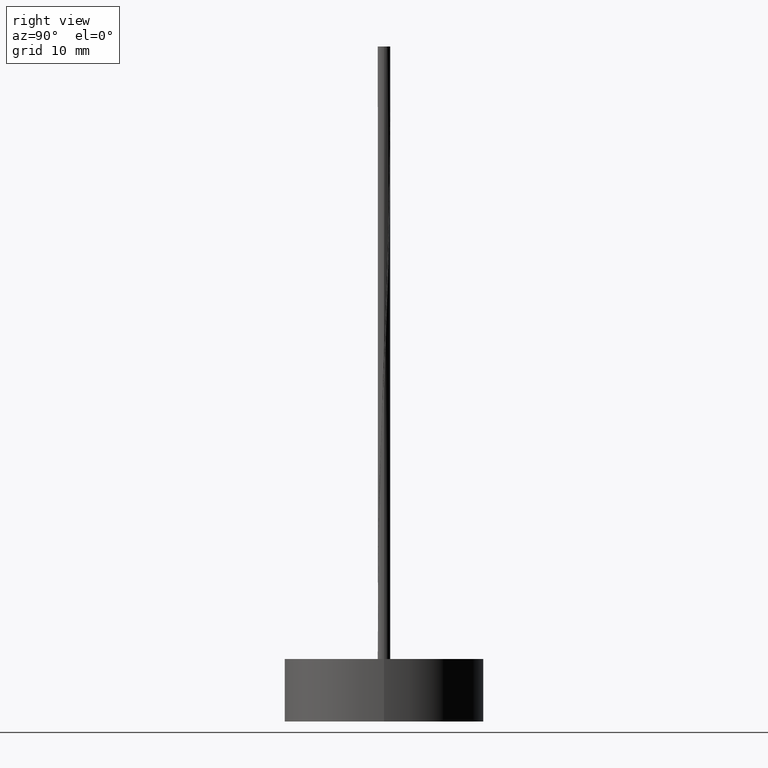
[diagram: clean part render]
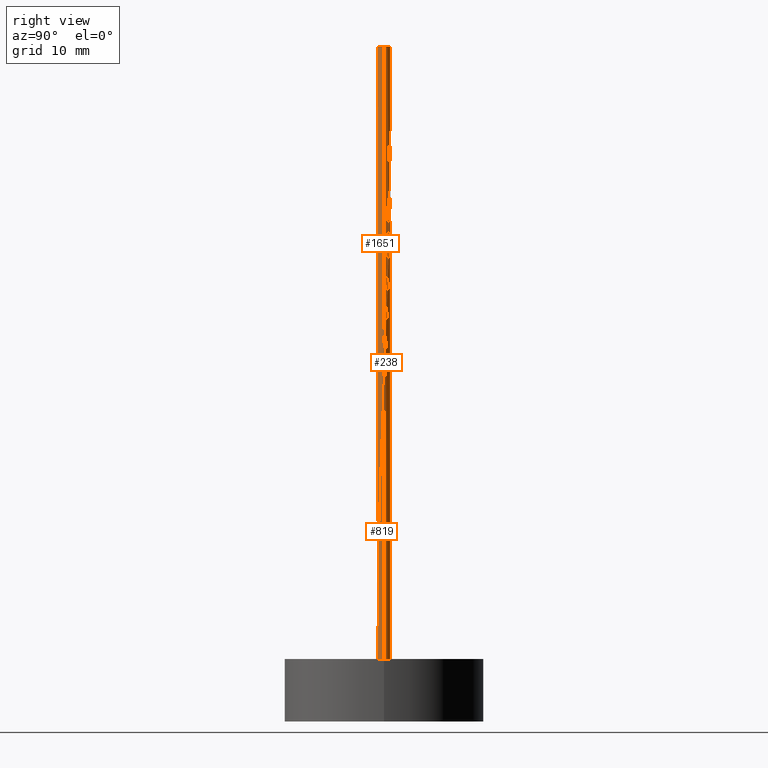
[diagram: same view with one multi-face feature highlighted, each face labeled with its STEP entity id]
A machine part, right view. The highlighted faces form ONE feature: a constant-radius fillet chain: 3 tangent blend faces with common blend radius 1 mm. The faces share edges in the B-rep.
Their STEP definitions:
[1] entity #238 (Cylinder):
#12 = LINE ( 'NONE', #1387, #555 ) ;
#25 = EDGE_CURVE ( 'NONE', #1259, #300, #1233, .T. ) ;
#60 = CARTESIAN_POINT ( 'NONE',  ( 0.8240076493817509729, 0.5720186643960755157, 74.88333333333331154 ) ) ;
#62 = CARTESIAN_POINT ( 'NONE',  ( 0.6069143560235192858, 0.7986544453702525415, 83.21666666666661172 ) ) ;
#68 = CARTESIAN_POINT ( 'NONE',  ( 1.000000000000000000, 1.224646799147353207E-16, 10.00000000000000000 ) ) ;
#71 = CARTESIAN_POINT ( 'NONE',  ( 0.000000000000000000, 0.000000000000000000, 97.80000000000001137 ) ) ;
#77 = CARTESIAN_POINT ( 'NONE',  ( 0.5040458170013946138, 0.8636769154975698637, 81.13333333333333997 ) ) ;
#80 = CARTESIAN_POINT ( 'NONE',  ( 0.8837640064664494810, 0.4745051522707387504, 66.54999999999999716 ) ) ;
#87 = CARTESIAN_POINT ( 'NONE',  ( 0.05700699695784680610, 0.9983737788513116218, 93.63333333333331154 ) ) ;
#88 = EDGE_CURVE ( 'NONE', #1149, #829, #1917, .T. ) ;
#95 = DIRECTION ( 'NONE',  ( 0.000000000000000000, 0.000000000000000000, 1.000000000000000000 ) ) ;
#105 = DIRECTION ( 'NONE',  ( 0.000000000000000000, 0.000000000000000000, 1.000000000000000000 ) ) ;
#209 = CARTESIAN_POINT ( 'NONE',  ( 0.6329490128214870781, 0.7741934817397425617, 76.96666666666665435 ) ) ;
#212 = CARTESIAN_POINT ( 'NONE',  ( 0.9999999999999997780, 0.05006261743217636090, 54.80811277766247969 ) ) ;
#216 = AXIS2_PLACEMENT_3D ( 'NONE', #71, #224, #1449 ) ;
#220 = CARTESIAN_POINT ( 'NONE',  ( 1.000000000000000222, 1.068785515643666300E-17, 58.78756500856336942 ) ) ;
#222 = CARTESIAN_POINT ( 'NONE',  ( 0.5407097541471291846, 0.8412092259183512333, 85.29999999999999716 ) ) ;
#224 = DIRECTION ( 'NONE',  ( 0.000000000000000000, -0.000000000000000000, -1.000000000000000000 ) ) ;
#228 = CARTESIAN_POINT ( 'NONE',  ( 1.000000000000000000, 1.224646799147353207E-16, 108.0000000000000000 ) ) ;
#230 = CARTESIAN_POINT ( 'NONE',  ( 0.9671260189330124213, 0.2542975884722126767, 60.30000000000000426 ) ) ;
#235 = ORIENTED_EDGE ( 'NONE', *, *, #1410, .T. ) ;
#238 = ADVANCED_FACE ( 'NONE', ( #1014 ), #1891, .T. ) ;
#243 = DIRECTION ( 'NONE',  ( 1.000000000000000000, 0.000000000000000000, 0.000000000000000000 ) ) ;
#247 = VERTEX_POINT ( 'NONE', #564 ) ;
#265 = VECTOR ( 'NONE', #1446, 1000.000000000000000 ) ;
#266 = CARTESIAN_POINT ( 'NONE',  ( 1.000000000000000000, 1.211290251062825998E-16, 53.47910165810331051 ) ) ;
#274 = ORIENTED_EDGE ( 'NONE', *, *, #680, .F. ) ;
#300 = VERTEX_POINT ( 'NONE', #1160 ) ;
#346 = ORIENTED_EDGE ( 'NONE', *, *, #851, .F. ) ;
#364 = EDGE_CURVE ( 'NONE', #992, #1888, #1646, .T. ) ;
#375 = CARTESIAN_POINT ( 'NONE',  ( 0.2124852142324064053, 0.9771642818546981690, 89.46666666666665435 ) ) ;
#382 = CIRCLE ( 'NONE', #216, 1.000000000000000000 ) ;
#405 = CARTESIAN_POINT ( 'NONE',  ( 0.8636769154975700857, 0.5040458170013947248, 72.79999999999998295 ) ) ;
#512 = CARTESIAN_POINT ( 'NONE',  ( 0.9154381855726569928, 0.4024586045737387763, 64.46666666666665435 ) ) ;
#531 = CARTESIAN_POINT ( 'NONE',  ( 0.09987492177719095587, 0.9949999999999999956, 97.79999999999999716 ) ) ;
#538 = CARTESIAN_POINT ( 'NONE',  ( 0.9983737788513118439, 0.05700699695784688936, 60.29999999999999005 ) ) ;
#546 = CARTESIAN_POINT ( 'NONE',  ( 0.9938872308897835905, 0.1355807174023893336, 62.38333333333332575 ) ) ;
#555 = VECTOR ( 'NONE', #795, 1000.000000000000000 ) ;
#564 = CARTESIAN_POINT ( 'NONE',  ( 1.000000000000000222, 1.068785515643666300E-17, 58.78756500856336942 ) ) ;
#639 = AXIS2_PLACEMENT_3D ( 'NONE', #1739, #105, #1066 ) ;
#675 = CARTESIAN_POINT ( 'NONE',  ( -0.09987492177719094200, 0.9949999999999999956, 97.79999999999999716 ) ) ;
#680 = EDGE_CURVE ( 'NONE', #829, #1277, #382, .T. ) ;
#706 = CARTESIAN_POINT ( 'NONE',  ( 0.6656468350606268292, 0.7462669033085755910, 81.13333333333332575 ) ) ;
#724 = AXIS2_PLACEMENT_3D ( 'NONE', #842, #865, #1582 ) ;
#795 = DIRECTION ( 'NONE',  ( -0.000000000000000000, -0.000000000000000000, -1.000000000000000000 ) ) ;
#815 = CARTESIAN_POINT ( 'NONE',  ( 0.8412092259183509002, 0.5407097541471290736, 68.63333333333331154 ) ) ;
#829 = VERTEX_POINT ( 'NONE', #675 ) ;
#833 = CARTESIAN_POINT ( 'NONE',  ( 0.09987492177719095587, 0.9949999999999999956, 97.79999999999999716 ) ) ;
#838 = ORIENTED_EDGE ( 'NONE', *, *, #364, .T. ) ;
#842 = CARTESIAN_POINT ( 'NONE',  ( 0.000000000000000000, 0.000000000000000000, 108.0000000000000000 ) ) ;
#845 = CARTESIAN_POINT ( 'NONE',  ( 1.000000000000000000, 1.211290251062825998E-16, 53.47910165810331051 ) ) ;
#851 = EDGE_CURVE ( 'NONE', #1277, #247, #922, .T. ) ;
#865 = DIRECTION ( 'NONE',  ( -0.000000000000000000, -0.000000000000000000, -1.000000000000000000 ) ) ;
#922 =( BOUNDED_CURVE ( )  B_SPLINE_CURVE ( 2, ( #531, #1703, #1857, #1419, #977, #1553, #222, #62, #706, #1130, #1855, #60, #405, #1701, #1562, #1719, #1007, #546, #538, #1015, #220 ),
 .UNSPECIFIED., .F., .T. ) 
 B_SPLINE_CURVE_WITH_KNOTS ( ( 3, 2, 2, 2, 2, 2, 2, 2, 2, 2, 3 ),
 ( 0.000000000000000000, 0.008333333333333333218, 0.01666666666666666644, 0.02500000000000000139, 0.03333333333333333287, 0.04166666666666666435, 0.05000000000000000278, 0.05833333333333333426, 0.06666666666666666574, 0.07499999999999999722, 0.07802649809302454609 ),
 .UNSPECIFIED. ) 
 CURVE ( )  GEOMETRIC_REPRESENTATION_ITEM ( )  RATIONAL_B_SPLINE_CURVE ( ( 0.9523809523809546596, 0.9494450797458384717, 0.9523809523809546596, 0.9494450797458384717, 0.9523809523809546596, 0.9494450797458384717, 0.9523809523809546596, 0.9494450797458384717, 0.9523809523809546596, 0.9494450797458384717, 0.9523809523809546596, 0.9494450797458384717, 0.9523809523809546596, 0.9494450797458384717, 0.9523809523809546596, 0.9494450797458384717, 0.9523809523809546596, 0.9494450797458384717, 0.9523809523809546596, 0.9513147028291696339, 0.9510229338138244115 ) ) 
 REPRESENTATION_ITEM ( '' )  );
#945 = EDGE_CURVE ( 'NONE', #1149, #992, #1591, .T. ) ;
#966 = CARTESIAN_POINT ( 'NONE',  ( 0.7462669033085754799, 0.6656468350606264961, 72.79999999999998295 ) ) ;
#968 = CARTESIAN_POINT ( 'NONE',  ( 0.9471123646788645045, 0.3304120568767389132, 62.38333333333333286 ) ) ;
#974 = CARTESIAN_POINT ( 'NONE',  ( 0.3627313403345689968, 0.9318937572165009176, 85.29999999999998295 ) ) ;
#975 = CARTESIAN_POINT ( 'NONE',  ( 1.000000000000000000, 1.224646799147353207E-16, 108.0000000000000000 ) ) ;
#977 = CARTESIAN_POINT ( 'NONE',  ( 0.4024586045737388873, 0.9154381855726573258, 89.46666666666665435 ) ) ;
#992 = VERTEX_POINT ( 'NONE', #68 ) ;
#998 = CARTESIAN_POINT ( 'NONE',  ( -0.09987492177719094200, 0.9949999999999999956, 97.79999999999999716 ) ) ;
#1007 = CARTESIAN_POINT ( 'NONE',  ( 0.9771642818546983911, 0.2124852142324065718, 64.46666666666665435 ) ) ;
#1014 = FACE_OUTER_BOUND ( 'NONE', #1527, .T. ) ;
#1015 = CARTESIAN_POINT ( 'NONE',  ( 1.000000000000000222, 0.02852669383533204192, 59.54486247433771240 ) ) ;
#1066 = DIRECTION ( 'NONE',  ( 1.000000000000000000, 0.000000000000000000, 0.000000000000000000 ) ) ;
#1130 = CARTESIAN_POINT ( 'NONE',  ( 0.7243793140977339284, 0.6938793612468989735, 79.04999999999999716 ) ) ;
#1149 = VERTEX_POINT ( 'NONE', #266 ) ;
#1150 = CARTESIAN_POINT ( 'NONE',  ( -0.02156672348669558606, 1.002860326812839986, 95.71666666666666856 ) ) ;
#1160 = CARTESIAN_POINT ( 'NONE',  ( -1.000000000000000000, 0.000000000000000000, 108.0000000000000000 ) ) ;
#1165 = ORIENTED_EDGE ( 'NONE', *, *, #88, .F. ) ;
#1221 = ORIENTED_EDGE ( 'NONE', *, *, #945, .T. ) ;
#1233 = CIRCLE ( 'NONE', #1299, 1.000000000000000000 ) ;
#1259 = VERTEX_POINT ( 'NONE', #228 ) ;
#1260 = CARTESIAN_POINT ( 'NONE',  ( 0.9949999999999997735, 0.09987492177719102526, 56.13333333333333286 ) ) ;
#1268 = CARTESIAN_POINT ( 'NONE',  ( 0.7986544453702520974, 0.6069143560235191748, 70.71666666666666856 ) ) ;
#1274 = DIRECTION ( 'NONE',  ( -0.000000000000000000, -0.000000000000000000, -1.000000000000000000 ) ) ;
#1277 = VERTEX_POINT ( 'NONE', #833 ) ;
#1284 = CARTESIAN_POINT ( 'NONE',  ( 0.1355807174023891115, 0.9938872308897833685, 91.55000000000001137 ) ) ;
#1299 = AXIS2_PLACEMENT_3D ( 'NONE', #1326, #95, #243 ) ;
#1326 = CARTESIAN_POINT ( 'NONE',  ( 0.000000000000000000, 0.000000000000000000, 108.0000000000000000 ) ) ;
#1387 = CARTESIAN_POINT ( 'NONE',  ( -1.000000000000000000, 0.000000000000000000, 108.0000000000000000 ) ) ;
#1405 = CARTESIAN_POINT ( 'NONE',  ( -1.000000000000000000, 0.000000000000000000, 10.00000000000000000 ) ) ;
#1410 = EDGE_CURVE ( 'NONE', #1259, #247, #1727, .T. ) ;
#1417 = CARTESIAN_POINT ( 'NONE',  ( 0.5720186643960754047, 0.8240076493817507508, 79.04999999999999716 ) ) ;
#1419 = CARTESIAN_POINT ( 'NONE',  ( 0.3304120568767389132, 0.9471123646788646155, 91.54999999999996874 ) ) ;
#1436 = ORIENTED_EDGE ( 'NONE', *, *, #25, .F. ) ;
#1446 = DIRECTION ( 'NONE',  ( -0.000000000000000000, -0.000000000000000000, -1.000000000000000000 ) ) ;
#1449 = DIRECTION ( 'NONE',  ( -1.000000000000000000, 0.000000000000000000, 0.000000000000000000 ) ) ;
#1525 = CARTESIAN_POINT ( 'NONE',  ( 0.4360729696067141559, 0.9033461816133890876, 83.21666666666666856 ) ) ;
#1527 = EDGE_LOOP ( 'NONE', ( #1436, #235, #346, #274, #1165, #1221, #838, #1546 ) ) ;
#1546 = ORIENTED_EDGE ( 'NONE', *, *, #1887, .F. ) ;
#1550 = CARTESIAN_POINT ( 'NONE',  ( 0.6938793612468987515, 0.7243793140977340395, 74.88333333333332575 ) ) ;
#1553 = CARTESIAN_POINT ( 'NONE',  ( 0.4745051522707389169, 0.8837640064664498141, 87.38333333333332575 ) ) ;
#1560 = VECTOR ( 'NONE', #1274, 1000.000000000000000 ) ;
#1562 = CARTESIAN_POINT ( 'NONE',  ( 0.9318937572165011396, 0.3627313403345691634, 68.63333333333331154 ) ) ;
#1582 = DIRECTION ( 'NONE',  ( -1.000000000000000000, 0.000000000000000000, 0.000000000000000000 ) ) ;
#1591 = LINE ( 'NONE', #975, #1560 ) ;
#1646 = CIRCLE ( 'NONE', #639, 1.000000000000000000 ) ;
#1701 = CARTESIAN_POINT ( 'NONE',  ( 0.9033461816133891986, 0.4360729696067143224, 70.71666666666666856 ) ) ;
#1703 = CARTESIAN_POINT ( 'NONE',  ( 0.1781831200676863014, 0.9871396731871600050, 95.71666666666665435 ) ) ;
#1704 = CARTESIAN_POINT ( 'NONE',  ( 0.9871396731871595609, 0.1781831200676863014, 58.21666666666666856 ) ) ;
#1719 = CARTESIAN_POINT ( 'NONE',  ( 0.9604413328196134136, 0.2893897110624240043, 66.54999999999996874 ) ) ;
#1727 = LINE ( 'NONE', #1873, #265 ) ;
#1739 = CARTESIAN_POINT ( 'NONE',  ( 0.000000000000000000, 0.000000000000000000, 10.00000000000000000 ) ) ;
#1854 = CARTESIAN_POINT ( 'NONE',  ( 0.2893897110624237823, 0.9604413328196130806, 87.38333333333329733 ) ) ;
#1855 = CARTESIAN_POINT ( 'NONE',  ( 0.7741934817397426727, 0.6329490128214871891, 76.96666666666665435 ) ) ;
#1857 = CARTESIAN_POINT ( 'NONE',  ( 0.2542975884722125657, 0.9671260189330125323, 93.63333333333331154 ) ) ;
#1873 = CARTESIAN_POINT ( 'NONE',  ( 1.000000000000000000, 1.224646799147353207E-16, 108.0000000000000000 ) ) ;
#1887 = EDGE_CURVE ( 'NONE', #300, #1888, #12, .T. ) ;
#1888 = VERTEX_POINT ( 'NONE', #1405 ) ;
#1891 = CYLINDRICAL_SURFACE ( 'NONE', #724, 1.000000000000000000 ) ;
#1917 =( BOUNDED_CURVE ( )  B_SPLINE_CURVE ( 2, ( #845, #212, #1260, #1704, #230, #968, #512, #80, #815, #1268, #966, #1550, #209, #1417, #77, #1525, #974, #1854, #375, #1284, #87, #1150, #998 ),
 .UNSPECIFIED., .F., .T. ) 
 B_SPLINE_CURVE_WITH_KNOTS ( ( 3, 2, 2, 2, 2, 2, 2, 2, 2, 2, 2, 3 ),
 ( 0.9113598314263579026, 0.9166666666666666297, 0.9250000000000000444, 0.9333333333333333481, 0.9416666666666666519, 0.9499999999999999556, 0.9583333333333333703, 0.9666666666666666741, 0.9749999999999999778, 0.9833333333333332815, 0.9916666666666666963, 1.000000000000000000 ),
 .UNSPECIFIED. ) 
 CURVE ( )  GEOMETRIC_REPRESENTATION_ITEM ( )  RATIONAL_B_SPLINE_CURVE ( ( 0.9510229338138209698, 0.9505113292976203887, 0.9523809523809514399, 0.9494450797458353630, 0.9523809523809514399, 0.9494450797458353630, 0.9523809523809514399, 0.9494450797458353630, 0.9523809523809514399, 0.9494450797458353630, 0.9523809523809514399, 0.9494450797458353630, 0.9523809523809514399, 0.9494450797458353630, 0.9523809523809514399, 0.9494450797458353630, 0.9523809523809514399, 0.9494450797458353630, 0.9523809523809514399, 0.9494450797458353630, 0.9523809523809514399, 0.9494450797458353630, 0.9523809523809514399 ) ) 
 REPRESENTATION_ITEM ( '' )  );
[2] entity #819 (Cylinder):
#68 = CARTESIAN_POINT ( 'NONE',  ( 1.000000000000000000, 1.224646799147353207E-16, 10.00000000000000000 ) ) ;
#72 = ORIENTED_EDGE ( 'NONE', *, *, #1677, .F. ) ;
#149 = CARTESIAN_POINT ( 'NONE',  ( 1.000000000000000000, 1.211290251062825998E-16, 53.47910165810331051 ) ) ;
#162 = DIRECTION ( 'NONE',  ( 1.000000000000000000, 0.000000000000000000, 0.000000000000000000 ) ) ;
#266 = CARTESIAN_POINT ( 'NONE',  ( 1.000000000000000000, 1.211290251062825998E-16, 53.47910165810331051 ) ) ;
#284 = CARTESIAN_POINT ( 'NONE',  ( 0.9771642818546983911, -0.2124852142324063498, 47.80000000000000426 ) ) ;
#294 = CARTESIAN_POINT ( 'NONE',  ( 0.7243793140977341505, -0.6938793612468987515, 33.21666666666666856 ) ) ;
#422 = EDGE_CURVE ( 'NONE', #1772, #992, #821, .T. ) ;
#451 = CARTESIAN_POINT ( 'NONE',  ( 0.000000000000000000, 0.000000000000000000, 108.0000000000000000 ) ) ;
#486 = CARTESIAN_POINT ( 'NONE',  ( -0.06831291332715047626, -0.9976639443583983358, 10.00000000000000888 ) ) ;
#574 = CARTESIAN_POINT ( 'NONE',  ( 0.4024586045737388318, -0.9154381855726569928, 22.79999999999999716 ) ) ;
#649 = AXIS2_PLACEMENT_3D ( 'NONE', #451, #753, #1123 ) ;
#716 = CARTESIAN_POINT ( 'NONE',  ( 0.6069143560235191748, -0.7986544453702520974, 29.04999999999999005 ) ) ;
#725 = CARTESIAN_POINT ( 'NONE',  ( 0.9033461816133890876, -0.4360729696067141559, 41.54999999999999716 ) ) ;
#736 = CARTESIAN_POINT ( 'NONE',  ( -0.06831291332715047626, -0.9976639443583983358, 10.00000000000000888 ) ) ;
#742 = ORIENTED_EDGE ( 'NONE', *, *, #422, .T. ) ;
#753 = DIRECTION ( 'NONE',  ( -0.000000000000000000, -0.000000000000000000, -1.000000000000000000 ) ) ;
#817 = CYLINDRICAL_SURFACE ( 'NONE', #649, 1.000000000000000000 ) ;
#819 = ADVANCED_FACE ( 'NONE', ( #1688 ), #817, .T. ) ;
#821 = CIRCLE ( 'NONE', #980, 1.000000000000000000 ) ;
#866 = CARTESIAN_POINT ( 'NONE',  ( 0.5407097541471290736, -0.8412092259183509002, 26.96666666666666146 ) ) ;
#897 = CARTESIAN_POINT ( 'NONE',  ( 0.9938872308897833685, -0.1355807174023891115, 49.88333333333332575 ) ) ;
#907 = CARTESIAN_POINT ( 'NONE',  ( 0.9983737788513116218, -0.05700699695784674365, 51.96666666666667567 ) ) ;
#923 = CARTESIAN_POINT ( 'NONE',  ( 0.000000000000000000, 0.000000000000000000, 10.00000000000000000 ) ) ;
#945 = EDGE_CURVE ( 'NONE', #1149, #992, #1591, .T. ) ;
#975 = CARTESIAN_POINT ( 'NONE',  ( 1.000000000000000000, 1.224646799147353207E-16, 108.0000000000000000 ) ) ;
#980 = AXIS2_PLACEMENT_3D ( 'NONE', #923, #1058, #162 ) ;
#992 = VERTEX_POINT ( 'NONE', #68 ) ;
#1022 = CARTESIAN_POINT ( 'NONE',  ( 0.8240076493817507508, -0.5720186643960750716, 37.38333333333333997 ) ) ;
#1042 = CARTESIAN_POINT ( 'NONE',  ( -0.05700699695784665344, -0.9983737788513116218, 10.30000000000000426 ) ) ;
#1055 = CARTESIAN_POINT ( 'NONE',  ( 0.02156672348669570055, -1.002860326812839986, 12.38333333333332931 ) ) ;
#1058 = DIRECTION ( 'NONE',  ( 0.000000000000000000, 0.000000000000000000, 1.000000000000000000 ) ) ;
#1063 = CARTESIAN_POINT ( 'NONE',  ( 0.1781831200676863569, -0.9871396731871595609, 16.54999999999999005 ) ) ;
#1123 = DIRECTION ( 'NONE',  ( -1.000000000000000000, 0.000000000000000000, 0.000000000000000000 ) ) ;
#1149 = VERTEX_POINT ( 'NONE', #266 ) ;
#1184 = CARTESIAN_POINT ( 'NONE',  ( 0.9604413328196130806, -0.2893897110624237823, 45.71666666666666856 ) ) ;
#1264 =( BOUNDED_CURVE ( )  B_SPLINE_CURVE ( 2, ( #736, #1462, #1042, #1055, #1617, #1063, #1628, #1636, #574, #1339, #866, #716, #1318, #294, #1899, #1022, #1910, #725, #1329, #1184, #284, #897, #907, #1492, #149 ),
 .UNSPECIFIED., .F., .T. ) 
 B_SPLINE_CURVE_WITH_KNOTS ( ( 3, 2, 2, 2, 2, 2, 2, 2, 2, 2, 2, 2, 3 ),
 ( 0.8243985274115703810, 0.8249999999999999556, 0.8333333333333333703, 0.8416666666666666741, 0.8499999999999999778, 0.8583333333333333925, 0.8666666666666666963, 0.8750000000000000000, 0.8833333333333333037, 0.8916666666666666075, 0.9000000000000000222, 0.9083333333333333259, 0.9113598314263579026 ),
 .UNSPECIFIED. ) 
 CURVE ( )  GEOMETRIC_REPRESENTATION_ITEM ( )  RATIONAL_B_SPLINE_CURVE ( ( 0.9519877378469893126, 0.9521690507513742574, 0.9523809523809514399, 0.9494450797458353630, 0.9523809523809514399, 0.9494450797458353630, 0.9523809523809514399, 0.9494450797458353630, 0.9523809523809514399, 0.9494450797458353630, 0.9523809523809514399, 0.9494450797458353630, 0.9523809523809514399, 0.9494450797458353630, 0.9523809523809514399, 0.9494450797458353630, 0.9523809523809514399, 0.9494450797458353630, 0.9523809523809514399, 0.9494450797458353630, 0.9523809523809514399, 0.9494450797458353630, 0.9523809523809514399, 0.9513147028291664142, 0.9510229338138209698 ) ) 
 REPRESENTATION_ITEM ( '' )  );
#1274 = DIRECTION ( 'NONE',  ( -0.000000000000000000, -0.000000000000000000, -1.000000000000000000 ) ) ;
#1318 = CARTESIAN_POINT ( 'NONE',  ( 0.6656468350606266071, -0.7462669033085753689, 31.13333333333333286 ) ) ;
#1329 = CARTESIAN_POINT ( 'NONE',  ( 0.9318937572165009176, -0.3627313403345689968, 43.63333333333333997 ) ) ;
#1339 = CARTESIAN_POINT ( 'NONE',  ( 0.4745051522707388614, -0.8837640064664494810, 24.88333333333331865 ) ) ;
#1443 = EDGE_LOOP ( 'NONE', ( #1877, #72, #742 ) ) ;
#1462 = CARTESIAN_POINT ( 'NONE',  ( -0.06266196545756314018, -0.9980508809758977806, 10.15006202700145721 ) ) ;
#1492 = CARTESIAN_POINT ( 'NONE',  ( 0.9999999999999997780, -0.02852669383533153538, 52.72180419232897464 ) ) ;
#1560 = VECTOR ( 'NONE', #1274, 1000.000000000000000 ) ;
#1591 = LINE ( 'NONE', #975, #1560 ) ;
#1617 = CARTESIAN_POINT ( 'NONE',  ( 0.09987492177719103914, -0.9949999999999997735, 14.46666666666666856 ) ) ;
#1628 = CARTESIAN_POINT ( 'NONE',  ( 0.2542975884722127322, -0.9671260189330120882, 18.63333333333332931 ) ) ;
#1636 = CARTESIAN_POINT ( 'NONE',  ( 0.3304120568767389687, -0.9471123646788645045, 20.71666666666666146 ) ) ;
#1677 = EDGE_CURVE ( 'NONE', #1772, #1149, #1264, .T. ) ;
#1688 = FACE_OUTER_BOUND ( 'NONE', #1443, .T. ) ;
#1772 = VERTEX_POINT ( 'NONE', #486 ) ;
#1877 = ORIENTED_EDGE ( 'NONE', *, *, #945, .F. ) ;
#1899 = CARTESIAN_POINT ( 'NONE',  ( 0.7741934817397424506, -0.6329490128214870781, 35.29999999999999716 ) ) ;
#1910 = CARTESIAN_POINT ( 'NONE',  ( 0.8636769154975698637, -0.5040458170013945027, 39.46666666666666146 ) ) ;
[3] entity #1651 (Cylinder):
#12 = LINE ( 'NONE', #1387, #555 ) ;
#41 =( BOUNDED_CURVE ( )  B_SPLINE_CURVE ( 2, ( #1151, #97, #586, #1748, #886, #1920, #1787, #1607, #1481, #1778, #1767, #1930, #433, #748, #1214, #1348, #305, #1454, #1362, #468, #1757, #423, #757, #445, #1470, #276, #596 ),
 .UNSPECIFIED., .F., .T. ) 
 B_SPLINE_CURVE_WITH_KNOTS ( ( 3, 2, 2, 2, 2, 2, 2, 2, 2, 2, 2, 2, 2, 3 ),
 ( 0.07802649809302454609, 0.08333333333333332871, 0.09166666666666666019, 0.1000000000000000056, 0.1083333333333333370, 0.1166666666666666685, 0.1250000000000000000, 0.1333333333333333315, 0.1416666666666666630, 0.1499999999999999944, 0.1583333333333333259, 0.1666666666666666574, 0.1749999999999999889, 0.1756014725884296745 ),
 .UNSPECIFIED. ) 
 CURVE ( )  GEOMETRIC_REPRESENTATION_ITEM ( )  RATIONAL_B_SPLINE_CURVE ( ( 0.9510229338138244115, 0.9505113292976234973, 0.9523809523809546596, 0.9494450797458384717, 0.9523809523809546596, 0.9494450797458384717, 0.9523809523809546596, 0.9494450797458384717, 0.9523809523809546596, 0.9494450797458384717, 0.9523809523809546596, 0.9494450797458384717, 0.9523809523809546596, 0.9494450797458384717, 0.9523809523809546596, 0.9494450797458384717, 0.9523809523809546596, 0.9494450797458384717, 0.9523809523809546596, 0.9494450797458384717, 0.9523809523809546596, 0.9494450797458384717, 0.9523809523809546596, 0.9494450797458384717, 0.9523809523809546596, 0.9521690507513775881, 0.9519877378469926432 ) ) 
 REPRESENTATION_ITEM ( '' )  );
#82 = CARTESIAN_POINT ( 'NONE',  ( 0.000000000000000000, 0.000000000000000000, 10.00000000000000000 ) ) ;
#97 = CARTESIAN_POINT ( 'NONE',  ( 1.000000000000000222, -0.05006261743217587518, 57.45855388900419314 ) ) ;
#116 = CYLINDRICAL_SURFACE ( 'NONE', #584, 1.000000000000000000 ) ;
#120 = CIRCLE ( 'NONE', #885, 1.000000000000000000 ) ;
#138 = DIRECTION ( 'NONE',  ( -0.000000000000000000, -0.000000000000000000, -1.000000000000000000 ) ) ;
#161 = ORIENTED_EDGE ( 'NONE', *, *, #710, .T. ) ;
#192 = ORIENTED_EDGE ( 'NONE', *, *, #1887, .T. ) ;
#228 = CARTESIAN_POINT ( 'NONE',  ( 1.000000000000000000, 1.224646799147353207E-16, 108.0000000000000000 ) ) ;
#247 = VERTEX_POINT ( 'NONE', #564 ) ;
#265 = VECTOR ( 'NONE', #1446, 1000.000000000000000 ) ;
#276 = CARTESIAN_POINT ( 'NONE',  ( -0.2597755640442631075, -0.9656856316924550265, 10.15006202700142524 ) ) ;
#300 = VERTEX_POINT ( 'NONE', #1160 ) ;
#305 = CARTESIAN_POINT ( 'NONE',  ( 0.3627313403345692189, -0.9318937572165011396, 26.96666666666665790 ) ) ;
#423 = CARTESIAN_POINT ( 'NONE',  ( -0.02156672348669544728, -1.002860326812840430, 16.54999999999999005 ) ) ;
#433 = CARTESIAN_POINT ( 'NONE',  ( 0.6329490128214873002, -0.7741934817397424506, 35.29999999999999005 ) ) ;
#445 = CARTESIAN_POINT ( 'NONE',  ( -0.1781831200676862181, -0.9871396731871600050, 12.38333333333332753 ) ) ;
#468 = CARTESIAN_POINT ( 'NONE',  ( 0.1355807174023893891, -0.9938872308897835905, 20.71666666666665790 ) ) ;
#529 = DIRECTION ( 'NONE',  ( 0.000000000000000000, 0.000000000000000000, 1.000000000000000000 ) ) ;
#555 = VECTOR ( 'NONE', #795, 1000.000000000000000 ) ;
#560 = ORIENTED_EDGE ( 'NONE', *, *, #1534, .F. ) ;
#564 = CARTESIAN_POINT ( 'NONE',  ( 1.000000000000000222, 1.068785515643666300E-17, 58.78756500856336942 ) ) ;
#584 = AXIS2_PLACEMENT_3D ( 'NONE', #1601, #138, #1939 ) ;
#586 = CARTESIAN_POINT ( 'NONE',  ( 0.9949999999999999956, -0.09987492177719085873, 56.13333333333331865 ) ) ;
#596 = CARTESIAN_POINT ( 'NONE',  ( -0.2652368714276842065, -0.9641832823873551783, 10.00000000000000178 ) ) ;
#710 = EDGE_CURVE ( 'NONE', #1888, #1556, #120, .T. ) ;
#748 = CARTESIAN_POINT ( 'NONE',  ( 0.5720186643960756268, -0.8240076493817509729, 33.21666666666666856 ) ) ;
#757 = CARTESIAN_POINT ( 'NONE',  ( -0.09987492177719081710, -0.9949999999999999956, 14.46666666666666679 ) ) ;
#795 = DIRECTION ( 'NONE',  ( -0.000000000000000000, -0.000000000000000000, -1.000000000000000000 ) ) ;
#825 = CARTESIAN_POINT ( 'NONE',  ( 0.000000000000000000, 0.000000000000000000, 108.0000000000000000 ) ) ;
#875 = FACE_OUTER_BOUND ( 'NONE', #1859, .T. ) ;
#885 = AXIS2_PLACEMENT_3D ( 'NONE', #82, #1885, #1133 ) ;
#886 = CARTESIAN_POINT ( 'NONE',  ( 0.9671260189330125323, -0.2542975884722125657, 51.96666666666666146 ) ) ;
#989 = CIRCLE ( 'NONE', #1692, 1.000000000000000000 ) ;
#1120 = EDGE_CURVE ( 'NONE', #300, #1259, #989, .T. ) ;
#1133 = DIRECTION ( 'NONE',  ( 1.000000000000000000, 0.000000000000000000, 0.000000000000000000 ) ) ;
#1151 = CARTESIAN_POINT ( 'NONE',  ( 1.000000000000000222, 1.068785515643666300E-17, 58.78756500856336942 ) ) ;
#1160 = CARTESIAN_POINT ( 'NONE',  ( -1.000000000000000000, 0.000000000000000000, 108.0000000000000000 ) ) ;
#1193 = CARTESIAN_POINT ( 'NONE',  ( -0.2652368714276842065, -0.9641832823873551783, 10.00000000000000178 ) ) ;
#1198 = ORIENTED_EDGE ( 'NONE', *, *, #1410, .F. ) ;
#1214 = CARTESIAN_POINT ( 'NONE',  ( 0.5040458170013948358, -0.8636769154975699747, 31.13333333333332931 ) ) ;
#1259 = VERTEX_POINT ( 'NONE', #228 ) ;
#1348 = CARTESIAN_POINT ( 'NONE',  ( 0.4360729696067143224, -0.9033461816133891986, 29.04999999999999716 ) ) ;
#1362 = CARTESIAN_POINT ( 'NONE',  ( 0.2124852142324066273, -0.9771642818546983911, 22.80000000000000071 ) ) ;
#1387 = CARTESIAN_POINT ( 'NONE',  ( -1.000000000000000000, 0.000000000000000000, 108.0000000000000000 ) ) ;
#1405 = CARTESIAN_POINT ( 'NONE',  ( -1.000000000000000000, 0.000000000000000000, 10.00000000000000000 ) ) ;
#1410 = EDGE_CURVE ( 'NONE', #1259, #247, #1727, .T. ) ;
#1446 = DIRECTION ( 'NONE',  ( -0.000000000000000000, -0.000000000000000000, -1.000000000000000000 ) ) ;
#1454 = CARTESIAN_POINT ( 'NONE',  ( 0.2893897110624240043, -0.9604413328196134136, 24.88333333333331865 ) ) ;
#1470 = CARTESIAN_POINT ( 'NONE',  ( -0.2542975884722125102, -0.9671260189330125323, 10.30000000000000071 ) ) ;
#1481 = CARTESIAN_POINT ( 'NONE',  ( 0.8412092259183512333, -0.5407097541471291846, 43.63333333333332575 ) ) ;
#1534 = EDGE_CURVE ( 'NONE', #247, #1556, #41, .T. ) ;
#1556 = VERTEX_POINT ( 'NONE', #1193 ) ;
#1601 = CARTESIAN_POINT ( 'NONE',  ( 0.000000000000000000, 0.000000000000000000, 108.0000000000000000 ) ) ;
#1607 = CARTESIAN_POINT ( 'NONE',  ( 0.8837640064664498141, -0.4745051522707388614, 45.71666666666664725 ) ) ;
#1651 = ADVANCED_FACE ( 'NONE', ( #875 ), #116, .T. ) ;
#1692 = AXIS2_PLACEMENT_3D ( 'NONE', #825, #529, #1711 ) ;
#1711 = DIRECTION ( 'NONE',  ( 1.000000000000000000, 0.000000000000000000, 0.000000000000000000 ) ) ;
#1727 = LINE ( 'NONE', #1873, #265 ) ;
#1748 = CARTESIAN_POINT ( 'NONE',  ( 0.9871396731871600050, -0.1781831200676862736, 54.04999999999999005 ) ) ;
#1757 = CARTESIAN_POINT ( 'NONE',  ( 0.05700699695784695181, -0.9983737788513116218, 18.63333333333333286 ) ) ;
#1767 = CARTESIAN_POINT ( 'NONE',  ( 0.7462669033085755910, -0.6656468350606267181, 39.46666666666664725 ) ) ;
#1778 = CARTESIAN_POINT ( 'NONE',  ( 0.7986544453702525415, -0.6069143560235192858, 41.54999999999999005 ) ) ;
#1781 = ORIENTED_EDGE ( 'NONE', *, *, #1120, .F. ) ;
#1787 = CARTESIAN_POINT ( 'NONE',  ( 0.9154381855726574369, -0.4024586045737387763, 47.79999999999999716 ) ) ;
#1859 = EDGE_LOOP ( 'NONE', ( #1198, #1781, #192, #161, #560 ) ) ;
#1873 = CARTESIAN_POINT ( 'NONE',  ( 1.000000000000000000, 1.224646799147353207E-16, 108.0000000000000000 ) ) ;
#1885 = DIRECTION ( 'NONE',  ( 0.000000000000000000, 0.000000000000000000, 1.000000000000000000 ) ) ;
#1887 = EDGE_CURVE ( 'NONE', #300, #1888, #12, .T. ) ;
#1888 = VERTEX_POINT ( 'NONE', #1405 ) ;
#1920 = CARTESIAN_POINT ( 'NONE',  ( 0.9471123646788648376, -0.3304120568767388577, 49.88333333333331865 ) ) ;
#1930 = CARTESIAN_POINT ( 'NONE',  ( 0.6938793612468989735, -0.7243793140977338174, 37.38333333333332575 ) ) ;
#1939 = DIRECTION ( 'NONE',  ( -1.000000000000000000, 0.000000000000000000, 0.000000000000000000 ) ) ;